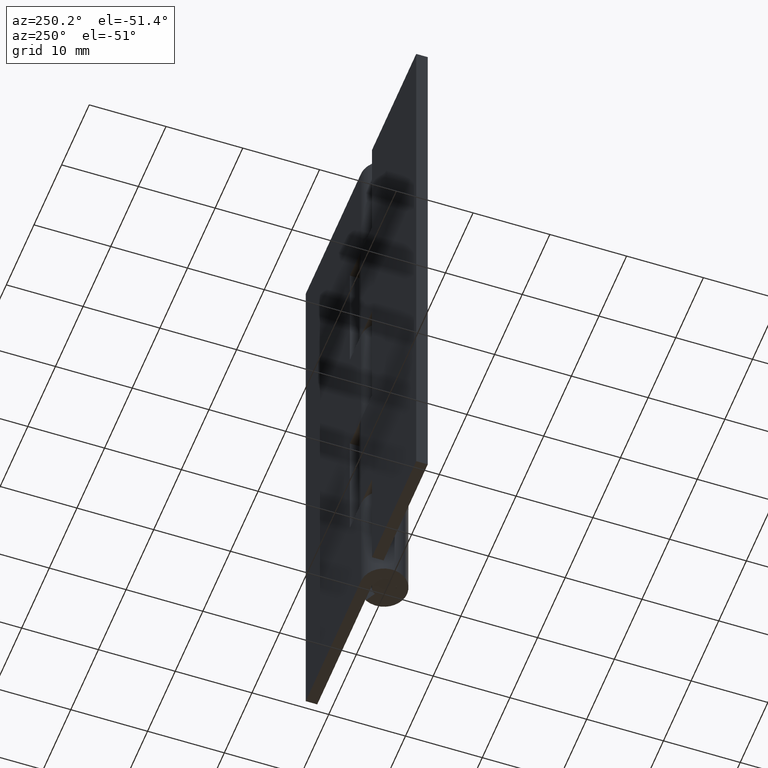
[diagram: clean part render]
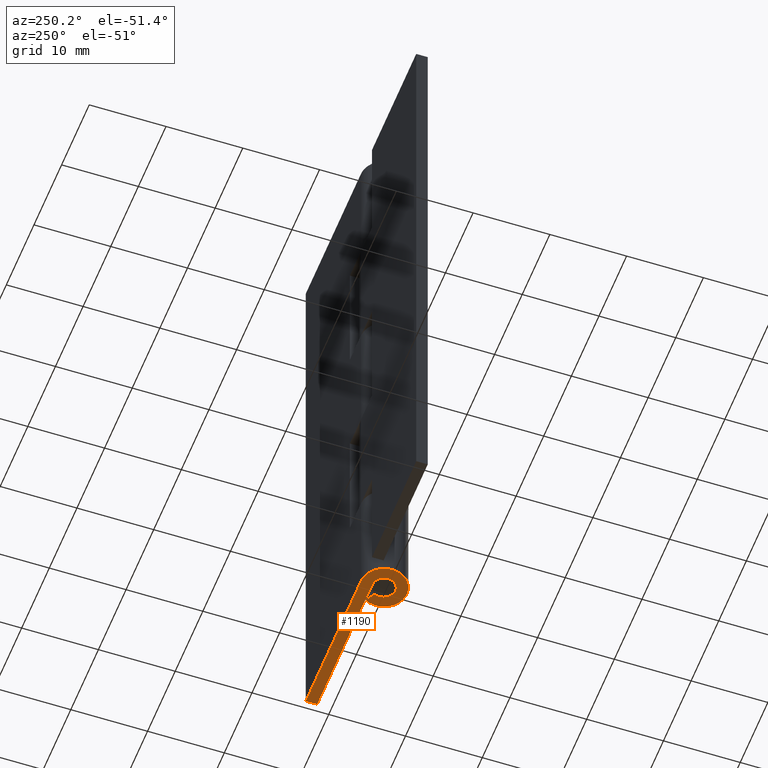
[diagram: same view with one face highlighted and labeled with its STEP entity id]
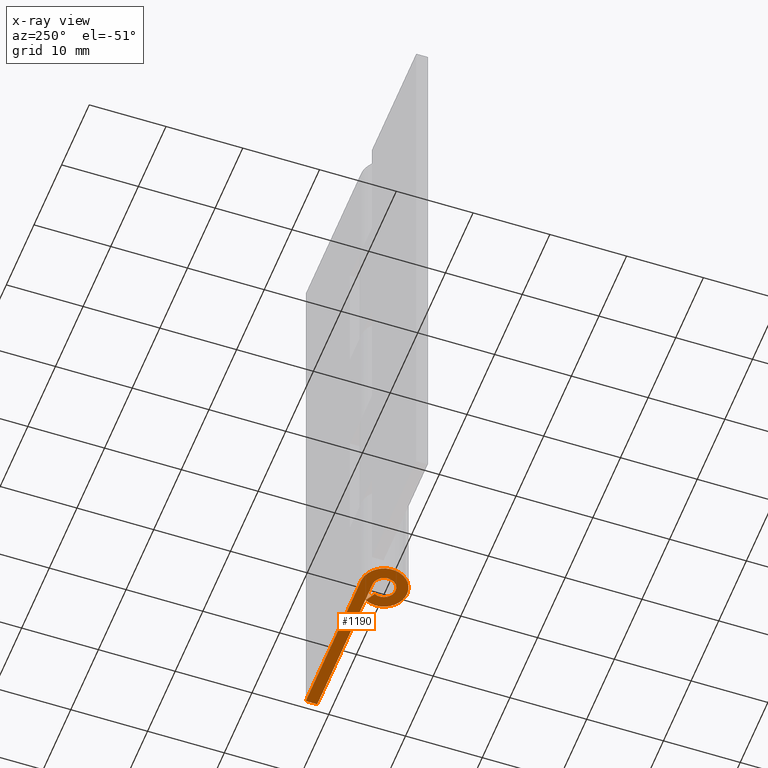
[diagram: x-ray of the same camera — body ghosted, the highlighted face saturated]
A machine part, auxiliary view. The second image highlights one B-rep face of the part: STEP entity #1190.
The next image is the same camera in x-ray: the body ghosted, the highlighted face saturated — about 0% of this face is hidden behind the body in this view.
In plain terms, the highlighted face is a freeform B-spline surface patch.
Its self-contained STEP definition (entity closure, byte-faithful):
#1113=CARTESIAN_POINT('',(-4.148797872268012,-3.299492235913699,0.0));
#1114=CARTESIAN_POINT('',(21.148848094540369,-3.299492235913699,0.0));
#1115=CARTESIAN_POINT('',(-4.148797872268012,3.299690265746614,0.0));
#1116=CARTESIAN_POINT('',(21.148848094540369,3.299690265746614,0.0));
#1117=B_SPLINE_SURFACE_WITH_KNOTS('',1,1,((#1113,#1115),(#1114,#1116)),.UNSPECIFIED.,.F.,.F.,.U.,(2,2),(2,2),(0.0,25.297645966808378),(0.0,6.599182501660313),.UNSPECIFIED.);
#1118=CARTESIAN_POINT('',(-5.510729E-016,3.0,0.0));
#1119=VERTEX_POINT('',#1118);
#1120=CARTESIAN_POINT('',(20.0,3.0,0.0));
#1121=VERTEX_POINT('',#1120);
#1122=CARTESIAN_POINT('',(-5.510729E-016,3.0,0.0));
#1123=CARTESIAN_POINT('',(20.0,3.0,0.0));
#1124=QUASI_UNIFORM_CURVE('',1,(#1122,#1123),.UNSPECIFIED.,.F.,.U.);
#1125=EDGE_CURVE('',#1119,#1121,#1124,.T.);
#1126=ORIENTED_EDGE('',*,*,#1125,.T.);
#1127=CARTESIAN_POINT('',(20.0,1.500000000000000,0.0));
#1128=VERTEX_POINT('',#1127);
#1129=CARTESIAN_POINT('',(20.0,3.0,0.0));
#1130=CARTESIAN_POINT('',(20.0,1.500000000000000,0.0));
#1131=QUASI_UNIFORM_CURVE('',1,(#1129,#1130),.UNSPECIFIED.,.F.,.U.);
#1132=EDGE_CURVE('',#1121,#1128,#1131,.T.);
#1133=ORIENTED_EDGE('',*,*,#1132,.T.);
#1134=CARTESIAN_POINT('',(0.0,1.500000000000000,0.0));
#1135=VERTEX_POINT('',#1134);
#1136=CARTESIAN_POINT('',(20.0,1.500000000000000,0.0));
#1137=CARTESIAN_POINT('',(0.0,1.500000000000000,0.0));
#1138=QUASI_UNIFORM_CURVE('',1,(#1136,#1137),.UNSPECIFIED.,.F.,.U.);
#1139=EDGE_CURVE('',#1128,#1135,#1138,.T.);
#1140=ORIENTED_EDGE('',*,*,#1139,.T.);
#1141=CARTESIAN_POINT('',(1.313154598666890,0.725000000000000,0.0));
#1142=VERTEX_POINT('',#1141);
#1143=CARTESIAN_POINT('',(1.313154598666890,0.725000000000000,0.0));
#1144=CARTESIAN_POINT('',(1.866715792252885,-0.277636451035838,0.0));
#1145=CARTESIAN_POINT('',(1.045325295443045,-1.075776476182162,0.0));
#1146=CARTESIAN_POINT('',(0.223934798633207,-1.873916501328486,0.0));
#1147=CARTESIAN_POINT('',(-0.762397534098844,-1.291801068276382,0.0));
#1148=CARTESIAN_POINT('',(-1.748729866830896,-0.709685635224277,0.0));
#1149=CARTESIAN_POINT('',(-1.447014444021651,0.395157182387861,0.0));
#1150=CARTESIAN_POINT('',(-1.145299021212405,1.500000000000000,0.0));
#1151=CARTESIAN_POINT('',(0.0,1.500000000000000,0.0));
#1159=(BOUNDED_CURVE()B_SPLINE_CURVE(2,(#1143,#1144,#1145,#1146,#1147,#1148,#1149,#1150,#1151),.UNSPECIFIED.,.F.,.U.)B_SPLINE_CURVE_WITH_KNOTS((3,2,2,2,3),(0.0,0.250000000000000,0.500000000000000,0.750000000000000,1.0),.UNSPECIFIED.)CURVE()GEOMETRIC_REPRESENTATION_ITEM()RATIONAL_B_SPLINE_CURVE((1.0,0.794807562115481,1.0,0.794807562115481,1.0,0.794807562115481,1.0,0.794807562115481,1.0))REPRESENTATION_ITEM(''));
#1160=EDGE_CURVE('',#1142,#1135,#1159,.T.);
#1161=ORIENTED_EDGE('',*,*,#1160,.F.);
#1162=CARTESIAN_POINT('',(2.626309197333780,1.450000000000000,0.0));
#1163=VERTEX_POINT('',#1162);
#1164=CARTESIAN_POINT('',(1.313154598666890,0.725000000000000,0.0));
#1165=CARTESIAN_POINT('',(2.626309197333780,1.450000000000000,0.0));
#1166=QUASI_UNIFORM_CURVE('',1,(#1164,#1165),.UNSPECIFIED.,.F.,.U.);
#1167=EDGE_CURVE('',#1142,#1163,#1166,.T.);
#1168=ORIENTED_EDGE('',*,*,#1167,.T.);
#1169=CARTESIAN_POINT('',(2.626309197333780,1.450000000000000,0.0));
#1170=CARTESIAN_POINT('',(3.733431584505770,-0.555272902071675,0.0));
#1171=CARTESIAN_POINT('',(2.090650590886091,-2.151552952364324,0.0));
#1172=CARTESIAN_POINT('',(0.447869597266413,-3.747833002656972,0.0));
#1173=CARTESIAN_POINT('',(-1.524795068197689,-2.583602136552764,0.0));
#1174=CARTESIAN_POINT('',(-3.497459733661792,-1.419371270448555,0.0));
#1175=CARTESIAN_POINT('',(-2.894028888043301,0.790314364775722,0.0));
#1176=CARTESIAN_POINT('',(-2.290598042424809,3.000000000000000,0.0));
#1177=CARTESIAN_POINT('',(0.0,3.0,0.0));
#1185=(BOUNDED_CURVE()B_SPLINE_CURVE(2,(#1169,#1170,#1171,#1172,#1173,#1174,#1175,#1176,#1177),.UNSPECIFIED.,.F.,.U.)B_SPLINE_CURVE_WITH_KNOTS((3,2,2,2,3),(0.0,0.250000000000000,0.500000000000000,0.750000000000000,1.0),.UNSPECIFIED.)CURVE()GEOMETRIC_REPRESENTATION_ITEM()RATIONAL_B_SPLINE_CURVE((1.0,0.794807562115481,1.0,0.794807562115481,1.0,0.794807562115481,1.0,0.794807562115481,1.0))REPRESENTATION_ITEM(''));
#1186=EDGE_CURVE('',#1163,#1119,#1185,.T.);
#1187=ORIENTED_EDGE('',*,*,#1186,.T.);
#1188=EDGE_LOOP('',(#1126,#1133,#1140,#1161,#1168,#1187));
#1189=FACE_OUTER_BOUND('',#1188,.T.);
#1190=ADVANCED_FACE('',(#1189),#1117,.F.);